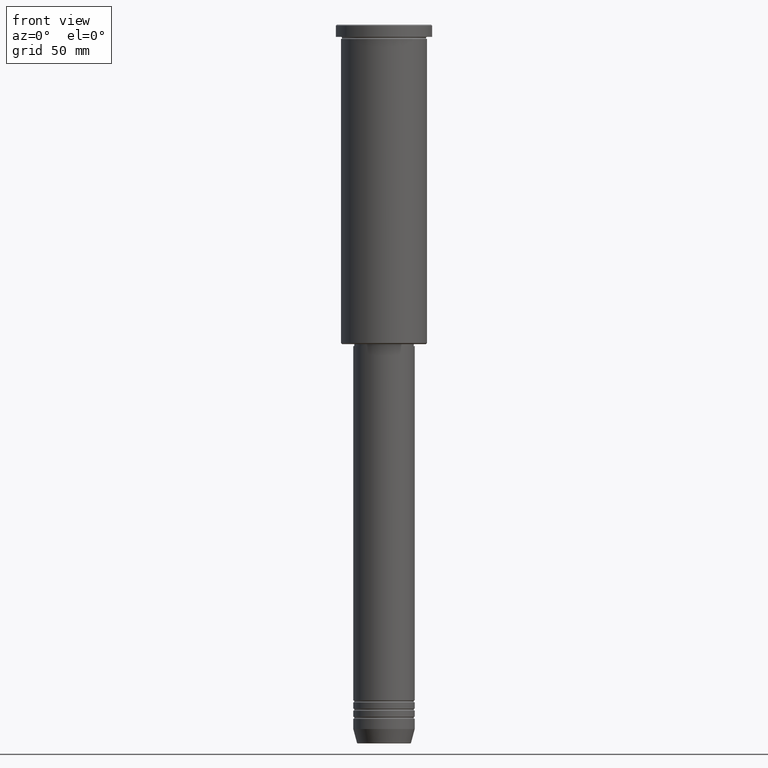
[diagram: clean part render]
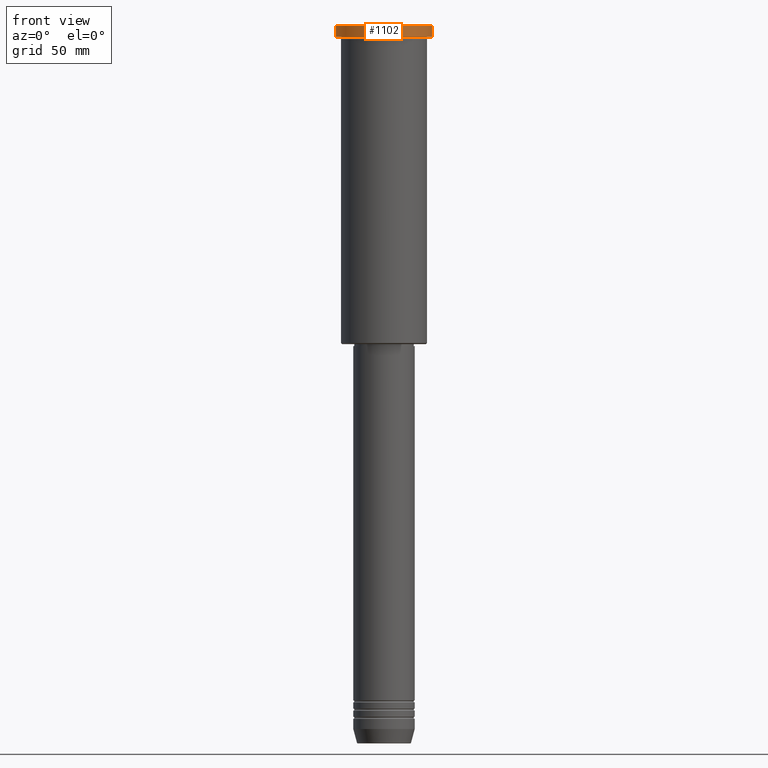
[diagram: same view with one face highlighted and labeled with its STEP entity id]
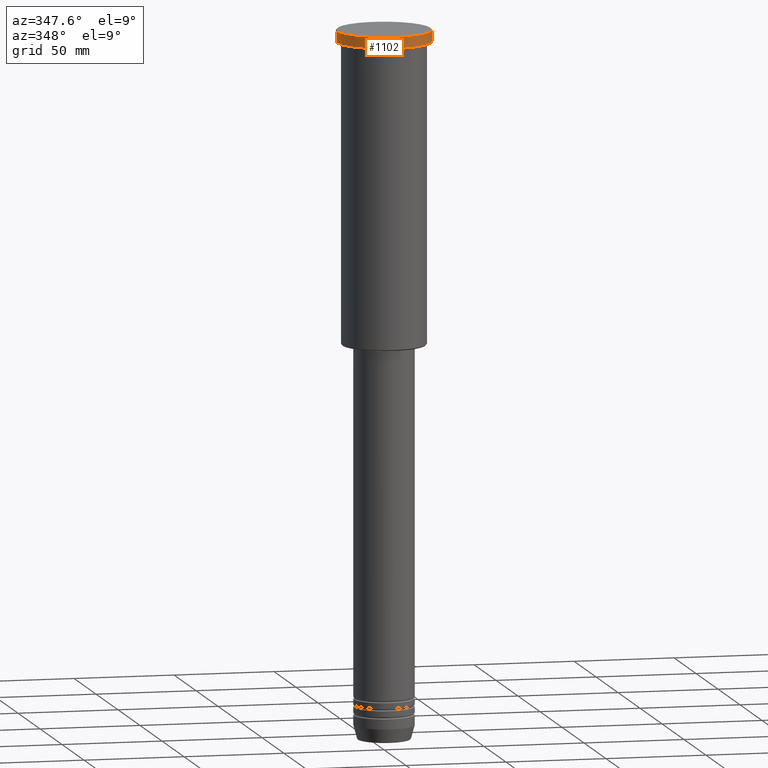
[diagram: same view with one face highlighted and labeled with its STEP entity id]
A machine part, front view. The second image highlights one B-rep face of the part: STEP entity #1102.
A second angle (auxiliary view) of the same face is appended — the face is thin or edge-on in the first view.
In plain terms, the highlighted cylindrical surface (partial cylindrical patch) has radius 23.5 mm, axis along (-0, -0, 1).
Its self-contained STEP definition (entity closure, byte-faithful):
#49 = VERTEX_POINT ( 'NONE', #212 ) ;
#77 = CIRCLE ( 'NONE', #282, 23.50000000000000000 ) ;
#144 = CARTESIAN_POINT ( 'NONE',  ( 23.50000000000000000, 0.000000000000000000, 0.000000000000000000 ) ) ;
#163 = EDGE_LOOP ( 'NONE', ( #695, #284, #868, #1172 ) ) ;
#208 = VECTOR ( 'NONE', #239, 1000.000000000000000 ) ;
#211 = DIRECTION ( 'NONE',  ( -0.000000000000000000, -0.000000000000000000, 1.000000000000000000 ) ) ;
#212 = CARTESIAN_POINT ( 'NONE',  ( 23.50000000000000000, 0.000000000000000000, -0.5000000000000004441 ) ) ;
#216 = EDGE_CURVE ( 'NONE', #1020, #49, #1168, .T. ) ;
#239 = DIRECTION ( 'NONE',  ( -0.000000000000000000, -0.000000000000000000, 1.000000000000000000 ) ) ;
#247 = DIRECTION ( 'NONE',  ( 1.000000000000000000, 0.000000000000000000, 0.000000000000000000 ) ) ;
#251 = VERTEX_POINT ( 'NONE', #869 ) ;
#282 = AXIS2_PLACEMENT_3D ( 'NONE', #692, #602, #247 ) ;
#284 = ORIENTED_EDGE ( 'NONE', *, *, #1164, .T. ) ;
#301 = AXIS2_PLACEMENT_3D ( 'NONE', #875, #1065, #1090 ) ;
#331 = EDGE_CURVE ( 'NONE', #49, #251, #77, .T. ) ;
#379 = CARTESIAN_POINT ( 'NONE',  ( -23.50000000000000000, 2.877919977996280320E-15, -5.999999999999993783 ) ) ;
#566 = CARTESIAN_POINT ( 'NONE',  ( 23.50000000000000000, 0.000000000000000000, -5.999999999999993783 ) ) ;
#602 = DIRECTION ( 'NONE',  ( 0.000000000000000000, 0.000000000000000000, -1.000000000000000000 ) ) ;
#643 = DIRECTION ( 'NONE',  ( -0.000000000000000000, -0.000000000000000000, 1.000000000000000000 ) ) ;
#680 = CYLINDRICAL_SURFACE ( 'NONE', #755, 23.50000000000000000 ) ;
#692 = CARTESIAN_POINT ( 'NONE',  ( 0.000000000000000000, 0.000000000000000000, -0.5000000000000004441 ) ) ;
#693 = CARTESIAN_POINT ( 'NONE',  ( -23.50000000000000000, 2.877919977996280320E-15, 0.000000000000000000 ) ) ;
#695 = ORIENTED_EDGE ( 'NONE', *, *, #895, .F. ) ;
#715 = CIRCLE ( 'NONE', #301, 23.50000000000000000 ) ;
#755 = AXIS2_PLACEMENT_3D ( 'NONE', #1054, #211, #1123 ) ;
#785 = LINE ( 'NONE', #693, #208 ) ;
#853 = FACE_OUTER_BOUND ( 'NONE', #163, .T. ) ;
#868 = ORIENTED_EDGE ( 'NONE', *, *, #216, .T. ) ;
#869 = CARTESIAN_POINT ( 'NONE',  ( -23.50000000000000000, 2.877919977996280320E-15, -0.5000000000000004441 ) ) ;
#875 = CARTESIAN_POINT ( 'NONE',  ( 0.000000000000000000, 0.000000000000000000, -5.999999999999993783 ) ) ;
#895 = EDGE_CURVE ( 'NONE', #994, #251, #785, .T. ) ;
#953 = VECTOR ( 'NONE', #643, 1000.000000000000000 ) ;
#994 = VERTEX_POINT ( 'NONE', #379 ) ;
#1020 = VERTEX_POINT ( 'NONE', #566 ) ;
#1054 = CARTESIAN_POINT ( 'NONE',  ( 0.000000000000000000, 0.000000000000000000, 0.000000000000000000 ) ) ;
#1065 = DIRECTION ( 'NONE',  ( -0.000000000000000000, -0.000000000000000000, 1.000000000000000000 ) ) ;
#1090 = DIRECTION ( 'NONE',  ( 1.000000000000000000, 0.000000000000000000, 0.000000000000000000 ) ) ;
#1102 = ADVANCED_FACE ( 'NONE', ( #853 ), #680, .T. ) ;
#1123 = DIRECTION ( 'NONE',  ( 1.000000000000000000, 0.000000000000000000, 0.000000000000000000 ) ) ;
#1164 = EDGE_CURVE ( 'NONE', #994, #1020, #715, .T. ) ;
#1168 = LINE ( 'NONE', #144, #953 ) ;
#1172 = ORIENTED_EDGE ( 'NONE', *, *, #331, .T. ) ;